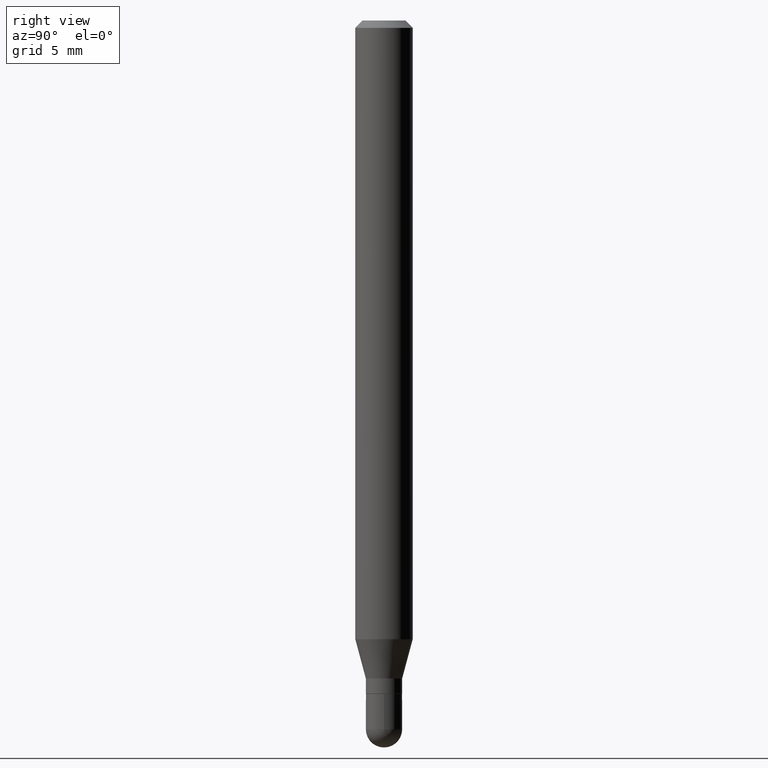
[diagram: clean part render]
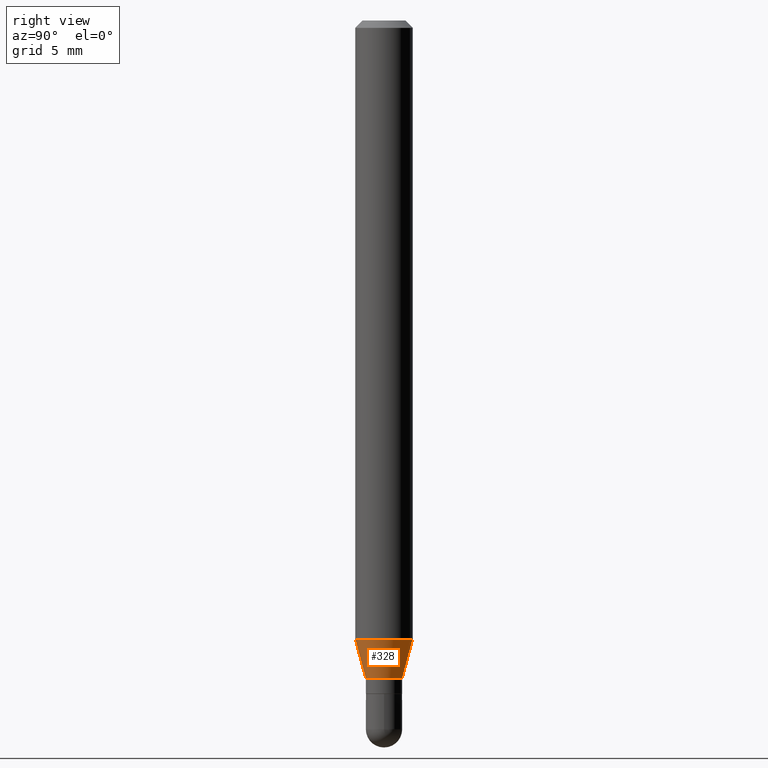
[diagram: same view with one face highlighted and labeled with its STEP entity id]
A machine part, right view. The second image highlights one B-rep face of the part: STEP entity #328.
In plain terms, the highlighted conical surface has half-angle 15 deg.
Its self-contained STEP definition (entity closure, byte-faithful):
#9 = ORIENTED_EDGE ( 'NONE', *, *, #107, .F. ) ;
#27 = EDGE_CURVE ( 'NONE', #333, #447, #417, .T. ) ;
#28 = CARTESIAN_POINT ( 'NONE',  ( 3.311475571882527521E-29, -4.727719990792336860E-15, -1.354099999999999859 ) ) ;
#53 = EDGE_CURVE ( 'NONE', #455, #276, #99, .T. ) ;
#60 = DIRECTION ( 'NONE',  ( -2.445517740109687553E-29, 3.491411262678042591E-15, 1.000000000000000000 ) ) ;
#71 = CARTESIAN_POINT ( 'NONE',  ( 2.657429831743100291E-16, 0.03739999999999519403, -1.354099999999999859 ) ) ;
#77 = CARTESIAN_POINT ( 'NONE',  ( 3.113880428590634668E-29, -4.445617801376670598E-15, -1.273301100016133836 ) ) ;
#83 = EDGE_CURVE ( 'NONE', #333, #455, #355, .T. ) ;
#99 = LINE ( 'NONE', #71, #282 ) ;
#107 = EDGE_CURVE ( 'NONE', #447, #276, #381, .T. ) ;
#129 = DIRECTION ( 'NONE',  ( -6.982962677686265133E-15, -1.000000000000000000, 0.000000000000000000 ) ) ;
#164 = AXIS2_PLACEMENT_3D ( 'NONE', #28, #60, #380 ) ;
#165 = CARTESIAN_POINT ( 'NONE',  ( 4.195754854663699134E-16, 0.05904999999999551580, -1.273301100016134058 ) ) ;
#195 = AXIS2_PLACEMENT_3D ( 'NONE', #77, #397, #392 ) ;
#226 = FACE_OUTER_BOUND ( 'NONE', #403, .T. ) ;
#232 = DIRECTION ( 'NONE',  ( 1.839019923739603076E-15, 0.2588190451025253469, 0.9659258262890670910 ) ) ;
#272 = CARTESIAN_POINT ( 'NONE',  ( -4.123439461173431685E-16, -0.05905000000000448085, -1.273301100016133613 ) ) ;
#276 = VERTEX_POINT ( 'NONE', #165 ) ;
#282 = VECTOR ( 'NONE', #232, 39.37007874015748143 ) ;
#292 = ORIENTED_EDGE ( 'NONE', *, *, #27, .F. ) ;
#319 = DIRECTION ( 'NONE',  ( -1.807323732225332900E-15, -0.2588190451025185745, 0.9659258262890689783 ) ) ;
#328 = ADVANCED_FACE ( 'NONE', ( #226 ), #472, .T. ) ;
#333 = VERTEX_POINT ( 'NONE', #448 ) ;
#335 = CARTESIAN_POINT ( 'NONE',  ( 3.311475571882527521E-29, -4.727719990792336860E-15, -1.354099999999999859 ) ) ;
#340 = VECTOR ( 'NONE', #319, 39.37007874015748143 ) ;
#352 = CARTESIAN_POINT ( 'NONE',  ( 3.426592343203402424E-16, 0.03739999999999519403, -1.354099999999999859 ) ) ;
#355 = CIRCLE ( 'NONE', #164, 0.03739999999999992636 ) ;
#380 = DIRECTION ( 'NONE',  ( -6.982962677686265133E-15, -1.000000000000000000, 0.000000000000000000 ) ) ;
#381 = CIRCLE ( 'NONE', #195, 0.05904999999999999832 ) ;
#392 = DIRECTION ( 'NONE',  ( -6.982962677686265922E-15, -1.000000000000000000, 4.626330217890369336E-15 ) ) ;
#397 = DIRECTION ( 'NONE',  ( -2.445517740109687553E-29, 3.491411262678042591E-15, 1.000000000000000000 ) ) ;
#403 = EDGE_LOOP ( 'NONE', ( #436, #477, #9, #292 ) ) ;
#416 = DIRECTION ( 'NONE',  ( -2.445517740109687553E-29, 3.491411262678042591E-15, 1.000000000000000000 ) ) ;
#417 = LINE ( 'NONE', #465, #340 ) ;
#436 = ORIENTED_EDGE ( 'NONE', *, *, #83, .T. ) ;
#447 = VERTEX_POINT ( 'NONE', #272 ) ;
#448 = CARTESIAN_POINT ( 'NONE',  ( -2.611628041454327257E-16, -0.03740000000000465175, -1.354099999999999859 ) ) ;
#455 = VERTEX_POINT ( 'NONE', #352 ) ;
#461 = AXIS2_PLACEMENT_3D ( 'NONE', #335, #416, #129 ) ;
#465 = CARTESIAN_POINT ( 'NONE',  ( -2.611628041454327257E-16, -0.03740000000000465175, -1.354099999999999859 ) ) ;
#472 = CONICAL_SURFACE ( 'NONE', #461, 0.03739999999999992636, 0.2617993877991506846 ) ;
#477 = ORIENTED_EDGE ( 'NONE', *, *, #53, .T. ) ;